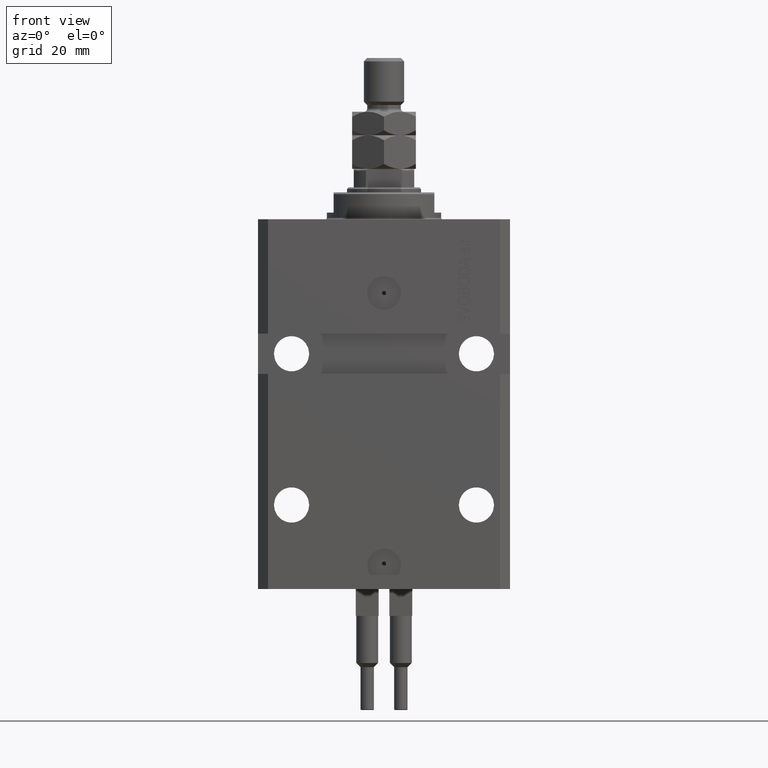
[diagram: clean part render]
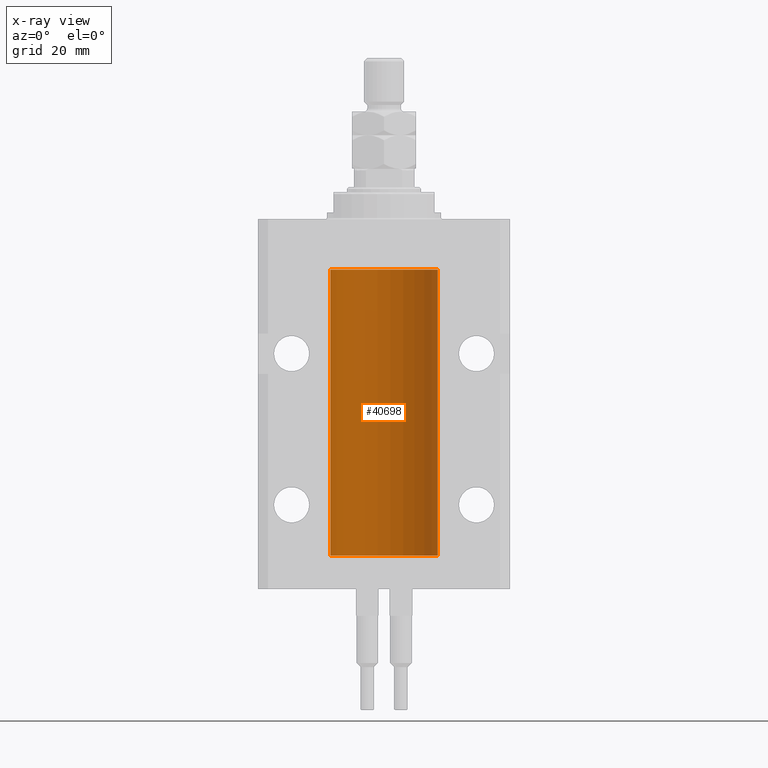
[diagram: x-ray — body ghosted, one internal face saturated and labeled with its STEP entity id]
A machine part, front view, then the same camera in x-ray: the body is ghosted and one INTERNAL B-rep face — a face not visible from any outside direction — is saturated and labeled: STEP entity #40698.
In plain terms, the highlighted cylindrical surface (partial cylindrical patch) has radius 16 mm, axis along (0, 0, 1).
Its self-contained STEP definition (entity closure, byte-faithful):
#452 = ORIENTED_EDGE ( 'NONE', *, *, #34506, .F. ) ;
#888 = CARTESIAN_POINT ( 'NONE',  ( -16.00000000000000000, 0.1631714642025800244, -22.62499999999985789 ) ) ;
#1141 = CARTESIAN_POINT ( 'NONE',  ( -15.99934216141748244, 0.1636497843296308152, -97.39126528029306940 ) ) ;
#1392 = CARTESIAN_POINT ( 'NONE',  ( -15.99070653155267685, 0.5573233280232986475, -21.67348148680506625 ) ) ;
#1614 = CIRCLE ( 'NONE', #19312, 16.00000000000000000 ) ;
#1629 = ORIENTED_EDGE ( 'NONE', *, *, #35405, .F. ) ;
#2707 = EDGE_LOOP ( 'NONE', ( #37897, #452, #26583, #31395, #1629, #31605, #28543, #19038 ) ) ;
#2937 = EDGE_CURVE ( 'NONE', #29683, #12220, #27070, .T. ) ;
#3057 = DIRECTION ( 'NONE',  ( 0.000000000000000000, 0.000000000000000000, 1.000000000000000000 ) ) ;
#3454 = CARTESIAN_POINT ( 'NONE',  ( -16.00000000000000000, 1.643679961284177128E-16, -21.37499999999999645 ) ) ;
#3548 = CARTESIAN_POINT ( 'NONE',  ( 0.000000000000000000, 0.000000000000000000, -100.0999999999999943 ) ) ;
#4373 = CARTESIAN_POINT ( 'NONE',  ( -16.00000000000000000, 1.959434878635765131E-15, -15.00000000000000000 ) ) ;
#4659 = DIRECTION ( 'NONE',  ( -0.000000000000000000, -0.000000000000000000, 1.000000000000000000 ) ) ;
#4908 = CARTESIAN_POINT ( 'NONE',  ( -16.00000000000000000, -1.303459030566954747E-14, -97.37500000000000000 ) ) ;
#4943 = AXIS2_PLACEMENT_3D ( 'NONE', #3548, #3057, #7083 ) ;
#6490 = CARTESIAN_POINT ( 'NONE',  ( -16.00000000000000000, -1.303459030566954747E-14, -97.37500000000000000 ) ) ;
#7083 = DIRECTION ( 'NONE',  ( 1.000000000000000000, 0.000000000000000000, 0.000000000000000000 ) ) ;
#8124 = CARTESIAN_POINT ( 'NONE',  ( 0.000000000000000000, 0.000000000000000000, -15.00000000000000000 ) ) ;
#8272 = DIRECTION ( 'NONE',  ( -0.000000000000000000, -0.000000000000000000, 1.000000000000000000 ) ) ;
#8443 = LINE ( 'NONE', #39121, #45033 ) ;
#8642 = B_SPLINE_CURVE_WITH_KNOTS ( 'NONE', 3,
 ( #4908, #32596, #1141, #43898, #12954, #31840, #9179, #27813, #16494, #20763, #39617, #28306, #32084, #36612 ),
 .UNSPECIFIED., .F., .F.,
 ( 4, 2, 2, 2, 2, 2, 4 ),
 ( 1.003919637555167698E-18, 0.0002442776652680894158, 0.0004885553305361776391, 0.0009771106610723541940, 0.001221388326340463017, 0.001465665991608572274, 0.001954221322144760863 ),
 .UNSPECIFIED. ) ;
#9179 = CARTESIAN_POINT ( 'NONE',  ( -15.98779057735153941, 0.6249419637998017141, -97.83670145863504786 ) ) ;
#9181 = CARTESIAN_POINT ( 'NONE',  ( -15.98778717651346071, 0.6250289588122140971, -22.08131585687052478 ) ) ;
#10537 = CARTESIAN_POINT ( 'NONE',  ( -16.00000000000013145, 3.685127046438747128E-13, -98.62500000000343903 ) ) ;
#10991 = CARTESIAN_POINT ( 'NONE',  ( -16.00000000000000000, 1.643679961284177128E-16, -21.37499999999999645 ) ) ;
#11558 = LINE ( 'NONE', #42736, #28435 ) ;
#11668 = CARTESIAN_POINT ( 'NONE',  ( 0.000000000000000000, 0.000000000000000000, -100.0999999999999943 ) ) ;
#12220 = VERTEX_POINT ( 'NONE', #10537 ) ;
#12274 = VERTEX_POINT ( 'NONE', #39168 ) ;
#12954 = CARTESIAN_POINT ( 'NONE',  ( -15.99548640841682712, 0.3843705577988784650, -97.50046628527007897 ) ) ;
#13627 = EDGE_CURVE ( 'NONE', #33163, #12220, #8642, .T. ) ;
#14130 = LINE ( 'NONE', #29221, #29596 ) ;
#14436 = CARTESIAN_POINT ( 'NONE',  ( 16.00000000000000000, 0.000000000000000000, -100.0999999999999943 ) ) ;
#14703 = DIRECTION ( 'NONE',  ( -0.000000000000000000, -0.000000000000000000, 1.000000000000000000 ) ) ;
#15442 = DIRECTION ( 'NONE',  ( 1.000000000000000000, 0.000000000000000000, 0.000000000000000000 ) ) ;
#15638 = EDGE_CURVE ( 'NONE', #45201, #12274, #14130, .T. ) ;
#16494 = CARTESIAN_POINT ( 'NONE',  ( -15.98844267028590949, 0.6088369347963275002, -98.16324735024325321 ) ) ;
#16496 = CARTESIAN_POINT ( 'NONE',  ( -15.99228023727724413, 0.5003781296993413674, -22.38347829554236057 ) ) ;
#16743 = CARTESIAN_POINT ( 'NONE',  ( -15.99070426498503217, 0.5462220647145618058, -22.31460064614143590 ) ) ;
#16989 = CARTESIAN_POINT ( 'NONE',  ( -15.99548640841683067, 0.3843705577988847377, -21.50046628527008608 ) ) ;
#18034 = VECTOR ( 'NONE', #32342, 1000.000000000000000 ) ;
#19038 = ORIENTED_EDGE ( 'NONE', *, *, #13627, .T. ) ;
#19312 = AXIS2_PLACEMENT_3D ( 'NONE', #8124, #41852, #22489 ) ;
#20549 = CARTESIAN_POINT ( 'NONE',  ( -16.00000000000000000, 1.959434878635765131E-15, -100.0999999999999943 ) ) ;
#20763 = CARTESIAN_POINT ( 'NONE',  ( -15.99070426498503572, 0.5462220647145610286, -98.31460064614144301 ) ) ;
#21640 = CARTESIAN_POINT ( 'NONE',  ( -16.00000000000013145, 3.685127038166941002E-13, -22.62500000000341771 ) ) ;
#22134 = VERTEX_POINT ( 'NONE', #3454 ) ;
#22489 = DIRECTION ( 'NONE',  ( 1.000000000000000000, 0.000000000000000000, 0.000000000000000000 ) ) ;
#24194 = B_SPLINE_CURVE_WITH_KNOTS ( 'NONE', 3,
 ( #10991, #26337, #41676, #49457, #16989, #1392, #40117, #9181, #32086, #16743, #16496, #47656, #888, #39619 ),
 .UNSPECIFIED., .F., .F.,
 ( 4, 2, 2, 2, 2, 2, 4 ),
 ( 1.597328219370744179E-19, 0.0002442776652680942405, 0.0004885553305361882643, 0.0009771106610723839011, 0.001221388326340481665, 0.001465665991608579430, 0.001954221322144767369 ),
 .UNSPECIFIED. ) ;
#26337 = CARTESIAN_POINT ( 'NONE',  ( -16.00000000000000711, 0.08259886010189904093, -21.37500000000000000 ) ) ;
#26583 = ORIENTED_EDGE ( 'NONE', *, *, #15638, .T. ) ;
#27070 = LINE ( 'NONE', #27812, #18034 ) ;
#27812 = CARTESIAN_POINT ( 'NONE',  ( -16.00000000000000000, 1.959434878635765131E-15, -100.0999999999999943 ) ) ;
#27813 = CARTESIAN_POINT ( 'NONE',  ( -15.98778717651346604, 0.6250289588122097673, -98.08131585687051768 ) ) ;
#28306 = CARTESIAN_POINT ( 'NONE',  ( -15.99711699979841661, 0.3253759916140614439, -98.55856151623174810 ) ) ;
#28435 = VECTOR ( 'NONE', #8272, 1000.000000000000000 ) ;
#28543 = ORIENTED_EDGE ( 'NONE', *, *, #42555, .F. ) ;
#29221 = CARTESIAN_POINT ( 'NONE',  ( 16.00000000000000000, 0.000000000000000000, -100.0999999999999943 ) ) ;
#29596 = VECTOR ( 'NONE', #44563, 1000.000000000000000 ) ;
#29683 = VERTEX_POINT ( 'NONE', #20549 ) ;
#31395 = ORIENTED_EDGE ( 'NONE', *, *, #31489, .T. ) ;
#31489 = EDGE_CURVE ( 'NONE', #12274, #37845, #1614, .T. ) ;
#31605 = ORIENTED_EDGE ( 'NONE', *, *, #40444, .T. ) ;
#31840 = CARTESIAN_POINT ( 'NONE',  ( -15.99070653155267685, 0.5573233280232928744, -97.67348148680505915 ) ) ;
#32084 = CARTESIAN_POINT ( 'NONE',  ( -15.99999999999998934, 0.1631714642025804407, -98.62499999999987210 ) ) ;
#32086 = CARTESIAN_POINT ( 'NONE',  ( -15.98844267028591482, 0.6088369347963316081, -22.16324735024328518 ) ) ;
#32342 = DIRECTION ( 'NONE',  ( -0.000000000000000000, -0.000000000000000000, 1.000000000000000000 ) ) ;
#32596 = CARTESIAN_POINT ( 'NONE',  ( -16.00000000000000711, 0.08259886010188650929, -97.37500000000000000 ) ) ;
#33163 = VERTEX_POINT ( 'NONE', #6490 ) ;
#34328 = FACE_OUTER_BOUND ( 'NONE', #2707, .T. ) ;
#34506 = EDGE_CURVE ( 'NONE', #45201, #29683, #40276, .T. ) ;
#35405 = EDGE_CURVE ( 'NONE', #22134, #37845, #8443, .T. ) ;
#36612 = CARTESIAN_POINT ( 'NONE',  ( -16.00000000000013145, 3.685127046438747128E-13, -98.62500000000343903 ) ) ;
#37845 = VERTEX_POINT ( 'NONE', #4373 ) ;
#37897 = ORIENTED_EDGE ( 'NONE', *, *, #2937, .F. ) ;
#38771 = AXIS2_PLACEMENT_3D ( 'NONE', #11668, #14703, #15442 ) ;
#39121 = CARTESIAN_POINT ( 'NONE',  ( -16.00000000000000000, 1.959434878635765131E-15, -100.0999999999999943 ) ) ;
#39168 = CARTESIAN_POINT ( 'NONE',  ( 16.00000000000000000, 0.000000000000000000, -15.00000000000000000 ) ) ;
#39617 = CARTESIAN_POINT ( 'NONE',  ( -15.99228023727724057, 0.5003781296993360383, -98.38347829554236057 ) ) ;
#39619 = CARTESIAN_POINT ( 'NONE',  ( -16.00000000000013145, 3.685127038166941002E-13, -22.62500000000341771 ) ) ;
#40117 = CARTESIAN_POINT ( 'NONE',  ( -15.98779057735153941, 0.6249419637998100407, -21.83670145863507273 ) ) ;
#40276 = CIRCLE ( 'NONE', #4943, 16.00000000000000000 ) ;
#40444 = EDGE_CURVE ( 'NONE', #22134, #47544, #24194, .T. ) ;
#40698 = ADVANCED_FACE ( 'NONE', ( #34328 ), #42107, .F. ) ;
#41676 = CARTESIAN_POINT ( 'NONE',  ( -15.99934216141748244, 0.1636497843296417787, -21.39126528029306229 ) ) ;
#41852 = DIRECTION ( 'NONE',  ( 0.000000000000000000, 0.000000000000000000, 1.000000000000000000 ) ) ;
#42107 = CYLINDRICAL_SURFACE ( 'NONE', #38771, 16.00000000000000000 ) ;
#42555 = EDGE_CURVE ( 'NONE', #33163, #47544, #11558, .T. ) ;
#42736 = CARTESIAN_POINT ( 'NONE',  ( -16.00000000000000000, 1.959434878635765131E-15, -100.0999999999999943 ) ) ;
#43898 = CARTESIAN_POINT ( 'NONE',  ( -15.99707730059171240, 0.3150375992092294686, -97.45402333202572720 ) ) ;
#44563 = DIRECTION ( 'NONE',  ( -0.000000000000000000, -0.000000000000000000, 1.000000000000000000 ) ) ;
#45033 = VECTOR ( 'NONE', #4659, 1000.000000000000000 ) ;
#45201 = VERTEX_POINT ( 'NONE', #14436 ) ;
#47544 = VERTEX_POINT ( 'NONE', #21640 ) ;
#47656 = CARTESIAN_POINT ( 'NONE',  ( -15.99711699979842017, 0.3253759916140657737, -22.55856151623175521 ) ) ;
#49457 = CARTESIAN_POINT ( 'NONE',  ( -15.99707730059171240, 0.3150375992092407373, -21.45402333202571654 ) ) ;